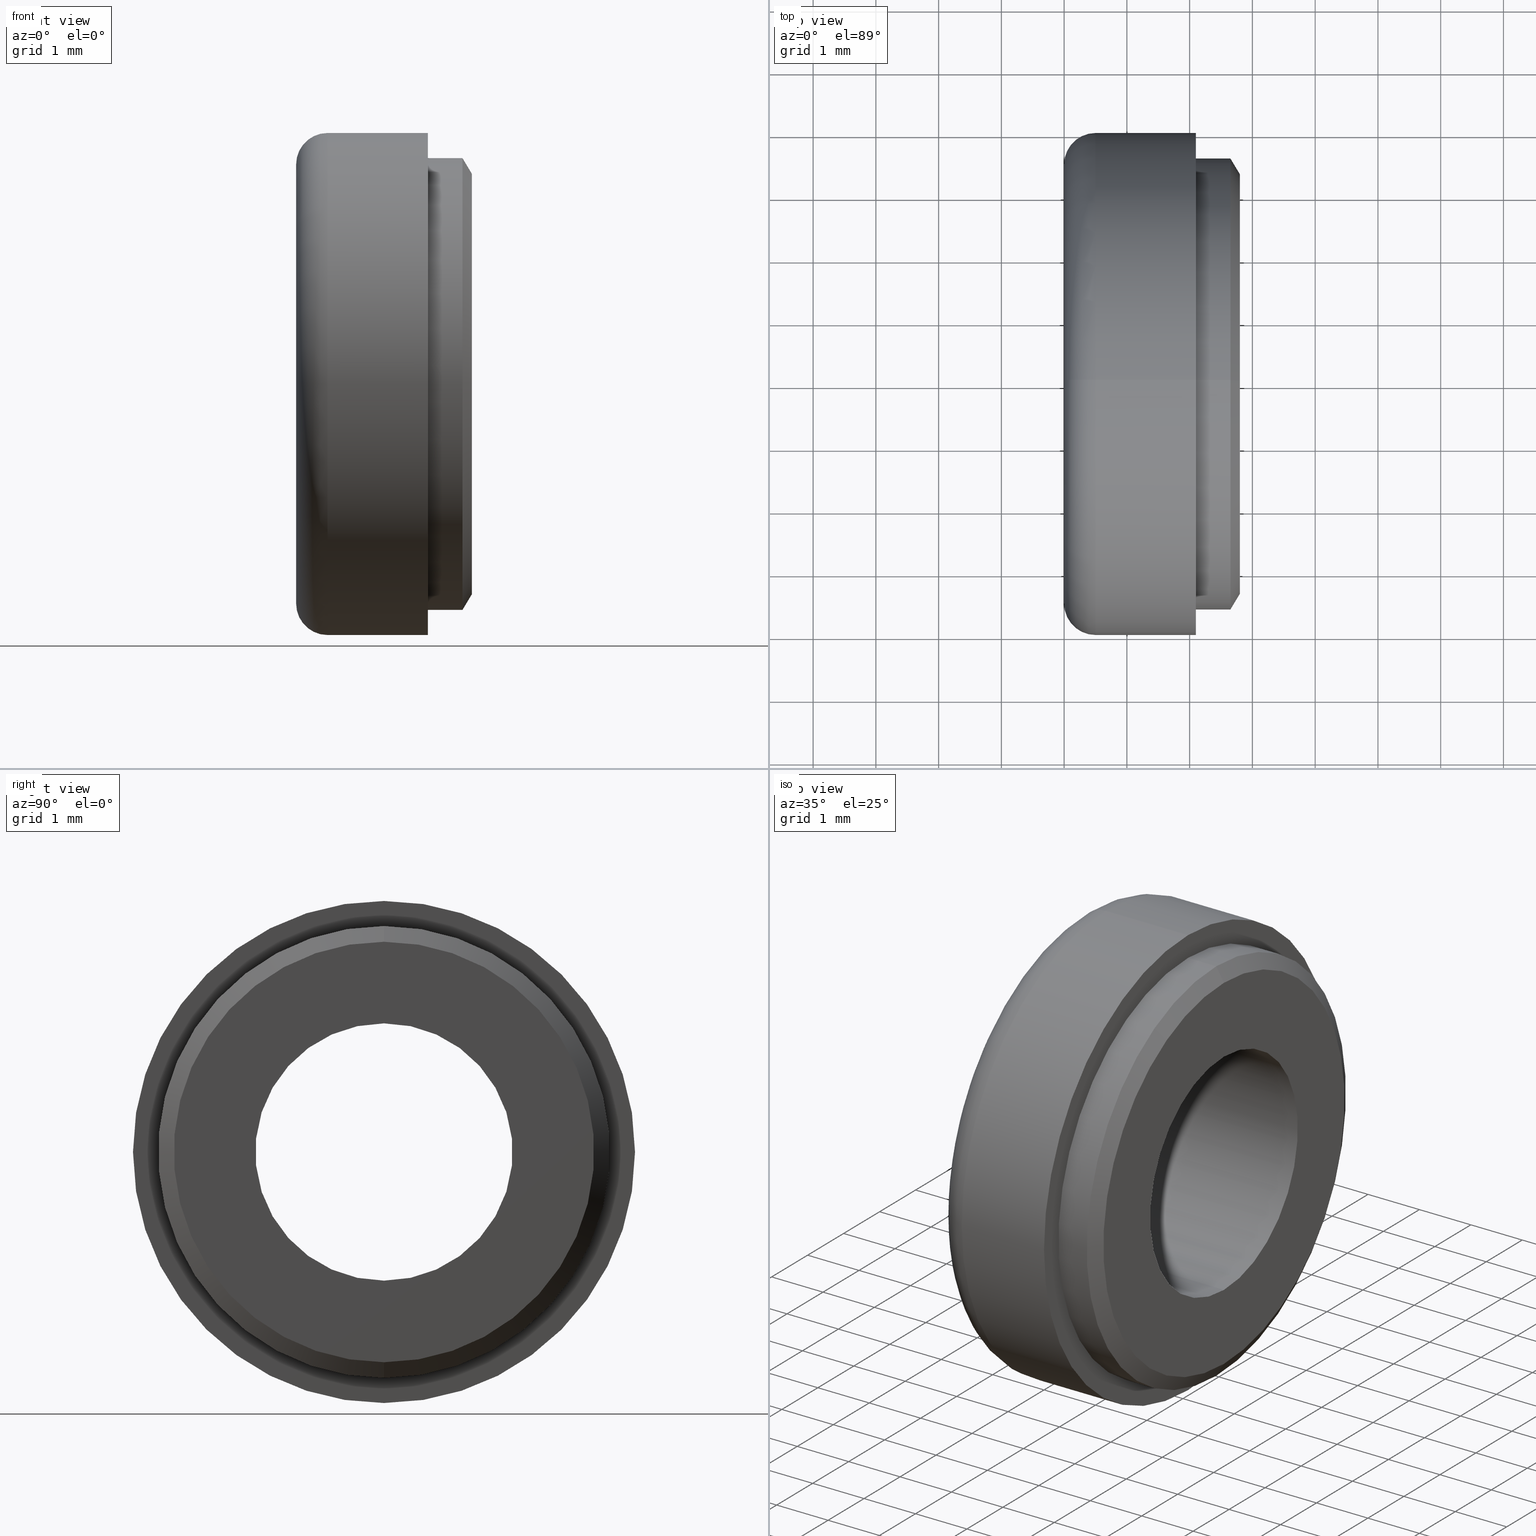
[diagram: canonical four-view strip — front | top / right | iso, engineering-drawing reading convention]
A machine part, canonical four-view strip (front | top / right | iso — engineering-drawing reading convention). The complete STEP part file that produces these views, byte-faithful:
ISO-10303-21;
HEADER;
FILE_DESCRIPTION (( 'STEP AP214' ),
    '1' );
FILE_NAME ('TL_421_M4.STEP',
    '2016-01-25T00:42:37',
    ( '' ),
    ( '' ),
    'SwSTEP 2.0',
    'SolidWorks 2015',
    '' );
FILE_SCHEMA (( 'AUTOMOTIVE_DESIGN' ));
ENDSEC;

DATA;
#1 = CARTESIAN_POINT ( 'NONE',  ( 2.100000000000000100, 0.0000000000000000000, 0.0000000000000000000 ) ) ;
#2 = COLOUR_RGB ( '',0.7921568627450980000, 0.8196078431372548800, 0.9333333333333333500 ) ;
#3 = ORIENTED_EDGE ( 'NONE', *, *, #383, .T. ) ;
#4 = SURFACE_SIDE_STYLE ('',( #642 ) ) ;
#5 = CARTESIAN_POINT ( 'NONE',  ( 2.100000000000000100, 0.0000000000000000000, 0.0000000000000000000 ) ) ;
#6 = AXIS2_PLACEMENT_3D ( 'NONE', #441, #499, #617 ) ;
#7 = CIRCLE ( 'NONE', #566, 3.500000000000000000 ) ;
#8 = EDGE_CURVE ( 'NONE', #686, #280, #706, .T. ) ;
#9 = ORIENTED_EDGE ( 'NONE', *, *, #549, .T. ) ;
#10 = CARTESIAN_POINT ( 'NONE',  ( 2.100000000000000100, 0.0000000000000000000, 4.000000000000000000 ) ) ;
#11 = EDGE_LOOP ( 'NONE', ( #551, #645 ) ) ;
#12 = DIRECTION ( 'NONE',  ( 0.0000000000000000000, 1.224646799147352500E-016, 1.000000000000000000 ) ) ;
#13 = CARTESIAN_POINT ( 'NONE',  ( 0.5000000000000000000, 0.0000000000000000000, 0.0000000000000000000 ) ) ;
#14 = SHAPE_REPRESENTATION ( 'TL_421_M4', ( #521, #375, #413 ), #447 ) ;
#15 = ORIENTED_EDGE ( 'NONE', *, *, #274, .T. ) ;
#16 = EDGE_LOOP ( 'NONE', ( #45, #146 ) ) ;
#17 = COLOUR_RGB ( '',0.7921568627450980000, 0.8196078431372548800, 0.9333333333333333500 ) ;
#18 = CIRCLE ( 'NONE', #465, 2.049999999999999400 ) ;
#19 = EDGE_LOOP ( 'NONE', ( #635, #443 ) ) ;
#20 = DIRECTION ( 'NONE',  ( 0.0000000000000000000, 0.0000000000000000000, 1.000000000000000000 ) ) ;
#21 = CIRCLE ( 'NONE', #273, 4.000000000000000000 ) ;
#22 = PRODUCT_RELATED_PRODUCT_CATEGORY ( 'part', '', ( #512 ) ) ;
#23 = CIRCLE ( 'NONE', #714, 0.5000000000000000000 ) ;
#24 = ADVANCED_FACE ( 'NONE', ( #297 ), #391, .F. ) ;
#25 = DIRECTION ( 'NONE',  ( -1.000000000000000000, 0.0000000000000000000, 0.0000000000000000000 ) ) ;
#26 = ORIENTED_EDGE ( 'NONE', *, *, #240, .F. ) ;
#27 = AXIS2_PLACEMENT_3D ( 'NONE', #258, #625, #358 ) ;
#28 = ADVANCED_FACE ( 'NONE', ( #29, #110 ), #560, .T. ) ;
#29 = FACE_BOUND ( 'NONE', #506, .T. ) ;
#30 = CIRCLE ( 'NONE', #367, 3.500000000000000000 ) ;
#31 = DIRECTION ( 'NONE',  ( 1.000000000000000000, 0.0000000000000000000, 0.0000000000000000000 ) ) ;
#32 = PRODUCT_CONTEXT ( 'NONE', #100, 'mechanical' ) ;
#33 = EDGE_CURVE ( 'NONE', #379, #279, #23, .T. ) ;
#34 = CARTESIAN_POINT ( 'NONE',  ( 2.299999999999996300, 0.0000000000000000000, 2.049999999999999400 ) ) ;
#35 = MECHANICAL_DESIGN_GEOMETRIC_PRESENTATION_REPRESENTATION (  '', ( #697 ), #81 ) ;
#36 = DIRECTION ( 'NONE',  ( 1.000000000000000000, 0.0000000000000000000, 0.0000000000000000000 ) ) ;
#37 = CIRCLE ( 'NONE', #322, 3.600000000000000100 ) ;
#38 = CARTESIAN_POINT ( 'NONE',  ( 2.100000000000000100, 0.0000000000000000000, 0.0000000000000000000 ) ) ;
#39 = CARTESIAN_POINT ( 'NONE',  ( 2.299999999999996300, 0.0000000000000000000, 0.0000000000000000000 ) ) ;
#40 = EDGE_LOOP ( 'NONE', ( #63, #121, #374, #545 ) ) ;
#41 =( NAMED_UNIT ( * ) PLANE_ANGLE_UNIT ( ) SI_UNIT ( $, .RADIAN. ) );
#42 = CYLINDRICAL_SURFACE ( 'NONE', #330, 2.049999999999999800 ) ;
#43 = VERTEX_POINT ( 'NONE', #144 ) ;
#44 = DIRECTION ( 'NONE',  ( 0.0000000000000000000, 0.0000000000000000000, 1.000000000000000000 ) ) ;
#45 = ORIENTED_EDGE ( 'NONE', *, *, #727, .F. ) ;
#46 = AXIS2_PLACEMENT_3D ( 'NONE', #633, #510, #732 ) ;
#47 = CARTESIAN_POINT ( 'NONE',  ( -88.98999999999999500, 0.0000000000000000000, 0.0000000000000000000 ) ) ;
#48 = VECTOR ( 'NONE', #188, 1000.000000000000000 ) ;
#49 = CARTESIAN_POINT ( 'NONE',  ( 2.149999999999999000, 0.0000000000000000000, 0.0000000000000000000 ) ) ;
#50 = FACE_BOUND ( 'NONE', #259, .T. ) ;
#51 = FACE_OUTER_BOUND ( 'NONE', #190, .T. ) ;
#52 = EDGE_CURVE ( 'NONE', #731, #349, #112, .T. ) ;
#53 = CIRCLE ( 'NONE', #705, 2.049999999999999800 ) ;
#54 = APPLICATION_CONTEXT ( 'automotive_design' ) ;
#55 = CONICAL_SURFACE ( 'NONE', #6, 3.350000000000000100, 1.030376826524319800 ) ;
#56 = FACE_BOUND ( 'NONE', #16, .T. ) ;
#57 = AXIS2_PLACEMENT_3D ( 'NONE', #1, #562, #498 ) ;
#58 = DIRECTION ( 'NONE',  ( -1.000000000000000000, -0.0000000000000000000, -0.0000000000000000000 ) ) ;
#59 = MECHANICAL_DESIGN_GEOMETRIC_PRESENTATION_REPRESENTATION (  '', ( #574 ), #514 ) ;
#60 = CARTESIAN_POINT ( 'NONE',  ( 0.0000000000000000000, 0.0000000000000000000, 0.0000000000000000000 ) ) ;
#61 = LINE ( 'NONE', #217, #206 ) ;
#62 = DIRECTION ( 'NONE',  ( 0.0000000000000000000, 0.0000000000000000000, -1.000000000000000000 ) ) ;
#63 = ORIENTED_EDGE ( 'NONE', *, *, #52, .F. ) ;
#64 = VERTEX_POINT ( 'NONE', #654 ) ;
#65 = PRODUCT_DEFINITION_FORMATION_WITH_SPECIFIED_SOURCE ( 'ANY', '', #454, .NOT_KNOWN. ) ;
#66 = ORIENTED_EDGE ( 'NONE', *, *, #260, .F. ) ;
#67 = DIRECTION ( 'NONE',  ( -1.000000000000000000, -0.0000000000000000000, -0.0000000000000000000 ) ) ;
#68 = CARTESIAN_POINT ( 'NONE',  ( 2.100000000000000100, 0.0000000000000000000, 0.0000000000000000000 ) ) ;
#69 = CIRCLE ( 'NONE', #277, 2.049999999999999800 ) ;
#70 = ORIENTED_EDGE ( 'NONE', *, *, #526, .T. ) ;
#71 = CARTESIAN_POINT ( 'NONE',  ( 2.100000000000000100, 0.0000000000000000000, 0.0000000000000000000 ) ) ;
#72 = EDGE_LOOP ( 'NONE', ( #86, #66, #713, #532 ) ) ;
#73 = VERTEX_POINT ( 'NONE', #238 ) ;
#74 = DIRECTION ( 'NONE',  ( -0.5144957554275202400, 1.050125966765370800E-016, -0.8574929257125478700 ) ) ;
#75 = ORIENTED_EDGE ( 'NONE', *, *, #519, .F. ) ;
#76 = ORIENTED_EDGE ( 'NONE', *, *, #78, .F. ) ;
#77 = DIRECTION ( 'NONE',  ( 0.0000000000000000000, 0.0000000000000000000, -1.000000000000000000 ) ) ;
#78 = EDGE_CURVE ( 'NONE', #311, #279, #134, .T. ) ;
#79 = FACE_OUTER_BOUND ( 'NONE', #99, .T. ) ;
#80 = DIRECTION ( 'NONE',  ( -1.000000000000000000, -0.0000000000000000000, -0.0000000000000000000 ) ) ;
#81 =( GEOMETRIC_REPRESENTATION_CONTEXT ( 3 ) GLOBAL_UNCERTAINTY_ASSIGNED_CONTEXT ( ( #568 ) ) GLOBAL_UNIT_ASSIGNED_CONTEXT ( ( #437, #234, #264 ) ) REPRESENTATION_CONTEXT ( 'NONE', 'WORKASPACE' ) );
#82 = VECTOR ( 'NONE', #397, 1000.000000000000000 ) ;
#83 = CARTESIAN_POINT ( 'NONE',  ( -88.98999999999999500, 0.0000000000000000000, 3.499999999999999600 ) ) ;
#84 = ADVANCED_FACE ( 'NONE', ( #51 ), #396, .T. ) ;
#85 = AXIS2_PLACEMENT_3D ( 'NONE', #347, #434, #629 ) ;
#86 = ORIENTED_EDGE ( 'NONE', *, *, #474, .F. ) ;
#87 = ORIENTED_EDGE ( 'NONE', *, *, #509, .F. ) ;
#88 = ADVANCED_FACE ( 'NONE', ( #390, #593 ), #90, .F. ) ;
#89 = CYLINDRICAL_SURFACE ( 'NONE', #350, 3.600000000000000100 ) ;
#90 = PLANE ( 'NONE',  #610 ) ;
#91 =( NAMED_UNIT ( * ) PLANE_ANGLE_UNIT ( ) SI_UNIT ( $, .RADIAN. ) );
#92 = EDGE_CURVE ( 'NONE', #64, #43, #310, .T. ) ;
#93 = ADVANCED_FACE ( 'NONE', ( #252 ), #324, .F. ) ;
#94 = EDGE_LOOP ( 'NONE', ( #594, #542 ) ) ;
#95 = AXIS2_PLACEMENT_3D ( 'NONE', #664, #712, #386 ) ;
#96 = APPLICATION_PROTOCOL_DEFINITION ( 'draft international standard', 'automotive_design', 1998, #611 ) ;
#97 = ORIENTED_EDGE ( 'NONE', *, *, #33, .F. ) ;
#98 = DIRECTION ( 'NONE',  ( 0.0000000000000000000, 0.0000000000000000000, -1.000000000000000000 ) ) ;
#99 = EDGE_LOOP ( 'NONE', ( #143, #359, #131, #170 ) ) ;
#100 = APPLICATION_CONTEXT ( 'automotive_design' ) ;
#101 = FACE_OUTER_BOUND ( 'NONE', #483, .T. ) ;
#102 = CARTESIAN_POINT ( 'NONE',  ( 0.0000000000000000000, 0.0000000000000000000, 0.0000000000000000000 ) ) ;
#103 = CARTESIAN_POINT ( 'NONE',  ( 2.299999999999998000, 2.049999999999999400, 0.0000000000000000000 ) ) ;
#104 = CARTESIAN_POINT ( 'NONE',  ( 2.299999999999996300, 0.0000000000000000000, 0.0000000000000000000 ) ) ;
#105 = PRODUCT_RELATED_PRODUCT_CATEGORY ( 'part', '', ( #454 ) ) ;
#106 = CIRCLE ( 'NONE', #141, 3.499999999999999600 ) ;
#107 = SURFACE_SIDE_STYLE ('',( #587 ) ) ;
#108 = FACE_OUTER_BOUND ( 'NONE', #670, .T. ) ;
#109 = ORIENTED_EDGE ( 'NONE', *, *, #194, .F. ) ;
#110 = FACE_OUTER_BOUND ( 'NONE', #94, .T. ) ;
#111 = CIRCLE ( 'NONE', #607, 2.100000000000000100 ) ;
#112 = LINE ( 'NONE', #647, #380 ) ;
#113 = FACE_OUTER_BOUND ( 'NONE', #569, .T. ) ;
#114 = DIRECTION ( 'NONE',  ( -1.000000000000000000, -0.0000000000000000000, -0.0000000000000000000 ) ) ;
#115 = PRODUCT_DEFINITION_CONTEXT ( 'detailed design', #163, 'design' ) ;
#116 = AXIS2_PLACEMENT_3D ( 'NONE', #49, #58, #388 ) ;
#117 = DIRECTION ( 'NONE',  ( -1.000000000000000000, -0.0000000000000000000, -0.0000000000000000000 ) ) ;
#118 = CARTESIAN_POINT ( 'NONE',  ( 0.5000000000000000000, 0.0000000000000000000, 3.500000000000000000 ) ) ;
#119 = SURFACE_STYLE_FILL_AREA ( #189 ) ;
#120 = FILL_AREA_STYLE_COLOUR ( '', #17 ) ;
#121 = ORIENTED_EDGE ( 'NONE', *, *, #169, .T. ) ;
#122 = EDGE_CURVE ( 'NONE', #470, #619, #303, .T. ) ;
#123 = DIRECTION ( 'NONE',  ( -1.000000000000000000, -0.0000000000000000000, -0.0000000000000000000 ) ) ;
#124 = CARTESIAN_POINT ( 'NONE',  ( 2.149999999999999000, 4.408728476930471200E-016, -3.600000000000000100 ) ) ;
#125 =( GEOMETRIC_REPRESENTATION_CONTEXT ( 3 ) GLOBAL_UNCERTAINTY_ASSIGNED_CONTEXT ( ( #490 ) ) GLOBAL_UNIT_ASSIGNED_CONTEXT ( ( #317, #719, #722 ) ) REPRESENTATION_CONTEXT ( 'NONE', 'WORKASPACE' ) );
#126 = DIRECTION ( 'NONE',  ( 0.0000000000000000000, 0.0000000000000000000, 1.000000000000000000 ) ) ;
#127 = ORIENTED_EDGE ( 'NONE', *, *, #309, .F. ) ;
#128 = CARTESIAN_POINT ( 'NONE',  ( 0.0000000000000000000, 0.0000000000000000000, 0.0000000000000000000 ) ) ;
#129 = DIRECTION ( 'NONE',  ( 0.0000000000000000000, 0.0000000000000000000, -1.000000000000000000 ) ) ;
#130 = TOROIDAL_SURFACE ( 'NONE', #95, 3.500000000000000000, 0.5000000000000000000 ) ;
#131 = ORIENTED_EDGE ( 'NONE', *, *, #348, .F. ) ;
#132 = DIRECTION ( 'NONE',  ( 1.000000000000000000, 0.0000000000000000000, 0.0000000000000000000 ) ) ;
#133 = CIRCLE ( 'NONE', #272, 3.500000000000000000 ) ;
#134 = LINE ( 'NONE', #314, #399 ) ;
#135 = DIRECTION ( 'NONE',  ( -1.000000000000000000, -0.0000000000000000000, -0.0000000000000000000 ) ) ;
#136 = CARTESIAN_POINT ( 'NONE',  ( 2.100000000000000100, 4.286263797015736600E-016, -3.500000000000000000 ) ) ;
#137 = CARTESIAN_POINT ( 'NONE',  ( 2.100000000000000100, 4.286263797015736600E-016, -3.500000000000000000 ) ) ;
#138 = EDGE_CURVE ( 'NONE', #286, #349, #409, .T. ) ;
#139 = DIRECTION ( 'NONE',  ( -1.000000000000000000, -0.0000000000000000000, -0.0000000000000000000 ) ) ;
#140 = CARTESIAN_POINT ( 'NONE',  ( 1.600000000000004100, 4.408728476930471200E-016, -3.600000000000000100 ) ) ;
#141 = AXIS2_PLACEMENT_3D ( 'NONE', #439, #276, #319 ) ;
#142 = EDGE_LOOP ( 'NONE', ( #695, #145 ) ) ;
#143 = ORIENTED_EDGE ( 'NONE', *, *, #727, .T. ) ;
#144 = CARTESIAN_POINT ( 'NONE',  ( 1.600000000000004100, 0.0000000000000000000, 3.499999999999999100 ) ) ;
#145 = ORIENTED_EDGE ( 'NONE', *, *, #444, .T. ) ;
#146 = ORIENTED_EDGE ( 'NONE', *, *, #8, .F. ) ;
#147 = CYLINDRICAL_SURFACE ( 'NONE', #355, 2.100000000000000100 ) ;
#148 = PRODUCT_DEFINITION_FORMATION_WITH_SPECIFIED_SOURCE ( 'ANY', '', #405, .NOT_KNOWN. ) ;
#149 = CARTESIAN_POINT ( 'NONE',  ( 1.600000000000004100, 0.0000000000000000000, 0.0000000000000000000 ) ) ;
#150 = CARTESIAN_POINT ( 'NONE',  ( -88.98999999999999500, 0.0000000000000000000, 0.0000000000000000000 ) ) ;
#151 = ORIENTED_EDGE ( 'NONE', *, *, #260, .T. ) ;
#152 = VECTOR ( 'NONE', #123, 1000.000000000000000 ) ;
#153 = ADVANCED_FACE ( 'NONE', ( #56, #538 ), #356, .T. ) ;
#154 = ADVANCED_FACE ( 'NONE', ( #415 ), #237, .T. ) ;
#155 = ORIENTED_EDGE ( 'NONE', *, *, #588, .T. ) ;
#156 = VERTEX_POINT ( 'NONE', #34 ) ;
#157 = LINE ( 'NONE', #612, #152 ) ;
#158 = EDGE_CURVE ( 'NONE', #381, #186, #346, .T. ) ;
#159 = STYLED_ITEM ( 'NONE', ( #446 ), #370 ) ;
#160 = DIRECTION ( 'NONE',  ( 0.0000000000000000000, 1.000000000000000000, -1.224646799147353200E-016 ) ) ;
#161 = DIRECTION ( 'NONE',  ( 0.0000000000000000000, 0.0000000000000000000, 1.000000000000000000 ) ) ;
#162 = FACE_OUTER_BOUND ( 'NONE', #698, .T. ) ;
#163 = APPLICATION_CONTEXT ( 'automotive_design' ) ;
#164 = VERTEX_POINT ( 'NONE', #469 ) ;
#165 = CIRCLE ( 'NONE', #680, 3.499999999999999600 ) ;
#166 = AXIS2_PLACEMENT_3D ( 'NONE', #150, #548, #679 ) ;
#167 = DIRECTION ( 'NONE',  ( -1.000000000000000000, 0.0000000000000000000, 0.0000000000000000000 ) ) ;
#168 = SHAPE_REPRESENTATION_RELATIONSHIP ( 'NONE' , 'NONE' ,  #630, #472 ) ;
#169 = EDGE_CURVE ( 'NONE', #731, #683, #248, .T. ) ;
#170 = ORIENTED_EDGE ( 'NONE', *, *, #540, .F. ) ;
#171 = DIRECTION ( 'NONE',  ( 1.000000000000000000, 0.0000000000000000000, 0.0000000000000000000 ) ) ;
#172 = AXIS2_PLACEMENT_3D ( 'NONE', #47, #262, #334 ) ;
#173 = AXIS2_PLACEMENT_3D ( 'NONE', #351, #67, #546 ) ;
#174 = FACE_OUTER_BOUND ( 'NONE', #19, .T. ) ;
#175 = DIRECTION ( 'NONE',  ( 0.0000000000000000000, 0.0000000000000000000, 1.000000000000000000 ) ) ;
#176 = DIRECTION ( 'NONE',  ( -0.5144957554275202400, 0.0000000000000000000, 0.8574929257125478700 ) ) ;
#177 = AXIS2_PLACEMENT_3D ( 'NONE', #403, #547, #62 ) ;
#178 = FACE_OUTER_BOUND ( 'NONE', #457, .T. ) ;
#179 = CARTESIAN_POINT ( 'NONE',  ( -88.98999999999999500, 0.0000000000000000000, 3.600000000000000100 ) ) ;
#180 = DIRECTION ( 'NONE',  ( -1.000000000000000000, -0.0000000000000000000, -0.0000000000000000000 ) ) ;
#181 = ORIENTED_EDGE ( 'NONE', *, *, #122, .T. ) ;
#182 = DIRECTION ( 'NONE',  ( -1.000000000000000000, -0.0000000000000000000, -0.0000000000000000000 ) ) ;
#183 = PRODUCT_RELATED_PRODUCT_CATEGORY ( 'part', '', ( #405 ) ) ;
#184 = MANIFOLD_SOLID_BREP ( '��� - �����o��1', #496 ) ;
#185 = CARTESIAN_POINT ( 'NONE',  ( 2.299999999999996300, 4.255647627037052200E-016, -3.350000000000000100 ) ) ;
#186 = VERTEX_POINT ( 'NONE', #553 ) ;
#187 = PRODUCT_DEFINITION_SHAPE ( 'NONE', 'NONE',  #733 ) ;
#188 = DIRECTION ( 'NONE',  ( -1.000000000000000000, -0.0000000000000000000, -0.0000000000000000000 ) ) ;
#189 = FILL_AREA_STYLE ('',( #377 ) ) ;
#190 = EDGE_LOOP ( 'NONE', ( #586, #213, #336, #76 ) ) ;
#191 = SURFACE_STYLE_USAGE ( .BOTH. , #4 ) ;
#192 = DIRECTION ( 'NONE',  ( 0.0000000000000000000, 0.0000000000000000000, 1.000000000000000000 ) ) ;
#193 = ORIENTED_EDGE ( 'NONE', *, *, #458, .T. ) ;
#194 = EDGE_CURVE ( 'NONE', #500, #379, #687, .T. ) ;
#195 = PRESENTATION_LAYER_ASSIGNMENT (  '', '', ( #159 ) ) ;
#196 = VECTOR ( 'NONE', #450, 1000.000000000000000 ) ;
#197 = SURFACE_STYLE_FILL_AREA ( #337 ) ;
#198 = ORIENTED_EDGE ( 'NONE', *, *, #224, .F. ) ;
#199 = EDGE_LOOP ( 'NONE', ( #155, #3 ) ) ;
#200 = AXIS2_PLACEMENT_3D ( 'NONE', #306, #699, #729 ) ;
#201 = APPLICATION_PROTOCOL_DEFINITION ( 'draft international standard', 'automotive_design', 1998, #660 ) ;
#202 = ADVANCED_FACE ( 'NONE', ( #101 ), #582, .T. ) ;
#203 = EDGE_CURVE ( 'NONE', #470, #731, #270, .T. ) ;
#204 = AXIS2_PLACEMENT_3D ( 'NONE', #104, #615, #44 ) ;
#205 = ORIENTED_EDGE ( 'NONE', *, *, #8, .T. ) ;
#206 = VECTOR ( 'NONE', #167, 1000.000000000000000 ) ;
#207 = CARTESIAN_POINT ( 'NONE',  ( 2.100000000000000100, 0.0000000000000000000, 0.0000000000000000000 ) ) ;
#208 = LINE ( 'NONE', #385, #82 ) ;
#209 = EDGE_LOOP ( 'NONE', ( #580, #364, #638, #247 ) ) ;
#210 = DIRECTION ( 'NONE',  ( -1.000000000000000000, -0.0000000000000000000, -0.0000000000000000000 ) ) ;
#211 = ORIENTED_EDGE ( 'NONE', *, *, #577, .T. ) ;
#212 = CARTESIAN_POINT ( 'NONE',  ( 0.5000000000000000000, 4.286263797015736600E-016, 3.500000000000000000 ) ) ;
#213 = ORIENTED_EDGE ( 'NONE', *, *, #309, .T. ) ;
#214 = CARTESIAN_POINT ( 'NONE',  ( 0.5000000000000000000, 2.571758278209442000E-016, -2.100000000000000100 ) ) ;
#215 = ITEM_DEFINED_TRANSFORMATION ( 'NONE', 'NONE', #375,  #651 ) ;
#216 = CONICAL_SURFACE ( 'NONE', #242, 3.350000000000000100, 1.030376826524319800 ) ;
#217 = CARTESIAN_POINT ( 'NONE',  ( 2.100000000000000100, 0.0000000000000000000, 2.100000000000000100 ) ) ;
#218 = UNCERTAINTY_MEASURE_WITH_UNIT (LENGTH_MEASURE( 1.000000000000000100E-005 ), #235, 'distance_accuracy_value', 'NONE');
#219 =( LENGTH_UNIT ( ) NAMED_UNIT ( * ) SI_UNIT ( .MILLI., .METRE. ) );
#220 = FACE_BOUND ( 'NONE', #11, .T. ) ;
#221 = CARTESIAN_POINT ( 'NONE',  ( 2.100000000000000100, 0.0000000000000000000, 3.500000000000000000 ) ) ;
#222 = EDGE_LOOP ( 'NONE', ( #425, #15, #198, #87 ) ) ;
#223 = LINE ( 'NONE', #662, #352 ) ;
#224 = EDGE_CURVE ( 'NONE', #164, #73, #165, .T. ) ;
#225 = CARTESIAN_POINT ( 'NONE',  ( 1.084202172485504400E-016, 3.499999999999999600, 0.0000000000000000000 ) ) ;
#226 = ORIENTED_EDGE ( 'NONE', *, *, #410, .F. ) ;
#227 = ORIENTED_EDGE ( 'NONE', *, *, #331, .F. ) ;
#228 = MECHANICAL_DESIGN_GEOMETRIC_PRESENTATION_REPRESENTATION (  '', ( #159 ), #263 ) ;
#229 = CARTESIAN_POINT ( 'NONE',  ( 0.5000000000000000000, 0.0000000000000000000, 2.100000000000000100 ) ) ;
#230 = DIRECTION ( 'NONE',  ( -1.000000000000000000, -0.0000000000000000000, -0.0000000000000000000 ) ) ;
#231 = DIRECTION ( 'NONE',  ( -1.000000000000000000, 0.0000000000000000000, -0.0000000000000000000 ) ) ;
#232 = CARTESIAN_POINT ( 'NONE',  ( 0.0000000000000000000, 0.0000000000000000000, 0.0000000000000000000 ) ) ;
#233 = COLOUR_RGB ( '',0.7921568627450980000, 0.8196078431372548800, 0.9333333333333333500 ) ;
#234 =( NAMED_UNIT ( * ) PLANE_ANGLE_UNIT ( ) SI_UNIT ( $, .RADIAN. ) );
#235 =( LENGTH_UNIT ( ) NAMED_UNIT ( * ) SI_UNIT ( .MILLI., .METRE. ) );
#236 = DIRECTION ( 'NONE',  ( -1.000000000000000000, -0.0000000000000000000, -0.0000000000000000000 ) ) ;
#237 = CYLINDRICAL_SURFACE ( 'NONE', #166, 3.600000000000000100 ) ;
#238 = CARTESIAN_POINT ( 'NONE',  ( 0.0000000000000000000, 4.286263797015736100E-016, -3.499999999999999600 ) ) ;
#239 = UNCERTAINTY_MEASURE_WITH_UNIT (LENGTH_MEASURE( 1.000000000000000100E-005 ), #529, 'distance_accuracy_value', 'NONE');
#240 = EDGE_CURVE ( 'NONE', #43, #64, #464, .T. ) ;
#241 = CARTESIAN_POINT ( 'NONE',  ( 0.0000000000000000000, 0.0000000000000000000, 0.0000000000000000000 ) ) ;
#242 = AXIS2_PLACEMENT_3D ( 'NONE', #689, #230, #685 ) ;
#243 = DIRECTION ( 'NONE',  ( 0.0000000000000000000, 0.0000000000000000000, 1.000000000000000000 ) ) ;
#244 = DIRECTION ( 'NONE',  ( 0.0000000000000000000, 0.0000000000000000000, -1.000000000000000000 ) ) ;
#245 = CARTESIAN_POINT ( 'NONE',  ( 1.600000000000004100, 0.0000000000000000000, 3.600000000000000100 ) ) ;
#246 = ORIENTED_EDGE ( 'NONE', *, *, #298, .T. ) ;
#247 = ORIENTED_EDGE ( 'NONE', *, *, #298, .F. ) ;
#248 = CIRCLE ( 'NONE', #116, 3.600000000000000100 ) ;
#249 = FACE_OUTER_BOUND ( 'NONE', #648, .T. ) ;
#250 = VERTEX_POINT ( 'NONE', #459 ) ;
#251 = ORIENTED_EDGE ( 'NONE', *, *, #78, .T. ) ;
#252 = FACE_OUTER_BOUND ( 'NONE', #690, .T. ) ;
#253 = CLOSED_SHELL ( 'NONE', ( #649, #704, #701, #93, #362, #357, #709, #254, #154, #421, #202 ) ) ;
#254 = ADVANCED_FACE ( 'NONE', ( #672 ), #55, .T. ) ;
#255 = ADVANCED_FACE ( 'NONE', ( #113 ), #261, .T. ) ;
#256 = COLOUR_RGB ( '',0.7921568627450980000, 0.8196078431372548800, 0.9333333333333333500 ) ;
#257 = DIRECTION ( 'NONE',  ( 1.000000000000000000, 0.0000000000000000000, 0.0000000000000000000 ) ) ;
#258 = CARTESIAN_POINT ( 'NONE',  ( -88.98999999999999500, 0.0000000000000000000, 0.0000000000000000000 ) ) ;
#259 = EDGE_LOOP ( 'NONE', ( #26, #487 ) ) ;
#260 = EDGE_CURVE ( 'NONE', #295, #609, #653, .T. ) ;
#261 = CYLINDRICAL_SURFACE ( 'NONE', #420, 4.000000000000000000 ) ;
#262 = DIRECTION ( 'NONE',  ( -1.000000000000000000, -0.0000000000000000000, -0.0000000000000000000 ) ) ;
#263 =( GEOMETRIC_REPRESENTATION_CONTEXT ( 3 ) GLOBAL_UNCERTAINTY_ASSIGNED_CONTEXT ( ( #239 ) ) GLOBAL_UNIT_ASSIGNED_CONTEXT ( ( #529, #41, #475 ) ) REPRESENTATION_CONTEXT ( 'NONE', 'WORKASPACE' ) );
#264 =( NAMED_UNIT ( * ) SI_UNIT ( $, .STERADIAN. ) SOLID_ANGLE_UNIT ( ) );
#265 = VECTOR ( 'NONE', #236, 1000.000000000000000 ) ;
#266 = ORIENTED_EDGE ( 'NONE', *, *, #458, .F. ) ;
#267 = APPLICATION_PROTOCOL_DEFINITION ( 'draft international standard', 'automotive_design', 1998, #163 ) ;
#268 = PRODUCT_DEFINITION_SHAPE ( 'NONE', 'NONE',  #676 ) ;
#269 = EDGE_LOOP ( 'NONE', ( #471, #456 ) ) ;
#270 = LINE ( 'NONE', #544, #382 ) ;
#271 = CARTESIAN_POINT ( 'NONE',  ( 0.0000000000000000000, 0.0000000000000000000, 0.0000000000000000000 ) ) ;
#272 = AXIS2_PLACEMENT_3D ( 'NONE', #691, #407, #445 ) ;
#273 = AXIS2_PLACEMENT_3D ( 'NONE', #71, #291, #693 ) ;
#274 = EDGE_CURVE ( 'NONE', #64, #73, #157, .T. ) ;
#275 = DIRECTION ( 'NONE',  ( 0.0000000000000000000, -1.000000000000000000, 0.0000000000000000000 ) ) ;
#276 = DIRECTION ( 'NONE',  ( -1.000000000000000000, -0.0000000000000000000, -0.0000000000000000000 ) ) ;
#277 = AXIS2_PLACEMENT_3D ( 'NONE', #511, #595, #675 ) ;
#278 = DIRECTION ( 'NONE',  ( -1.000000000000000000, -0.0000000000000000000, -0.0000000000000000000 ) ) ;
#279 = VERTEX_POINT ( 'NONE', #480 ) ;
#280 = VERTEX_POINT ( 'NONE', #221 ) ;
#281 = DIRECTION ( 'NONE',  ( 1.000000000000000000, 0.0000000000000000000, 0.0000000000000000000 ) ) ;
#282 = DIRECTION ( 'NONE',  ( 0.0000000000000000000, 0.0000000000000000000, -1.000000000000000000 ) ) ;
#283 = CARTESIAN_POINT ( 'NONE',  ( 2.299999999999996300, 0.0000000000000000000, 3.350000000000000100 ) ) ;
#284 = CIRCLE ( 'NONE', #177, 4.000000000000000000 ) ;
#285 = DIRECTION ( 'NONE',  ( 1.000000000000000000, 0.0000000000000000000, 0.0000000000000000000 ) ) ;
#286 = VERTEX_POINT ( 'NONE', #245 ) ;
#287 = ORIENTED_EDGE ( 'NONE', *, *, #549, .F. ) ;
#288 = ORIENTED_EDGE ( 'NONE', *, *, #158, .F. ) ;
#289 =( NAMED_UNIT ( * ) SI_UNIT ( $, .STERADIAN. ) SOLID_ANGLE_UNIT ( ) );
#290 = CARTESIAN_POINT ( 'NONE',  ( 0.0000000000000000000, 0.0000000000000000000, 0.0000000000000000000 ) ) ;
#291 = DIRECTION ( 'NONE',  ( 1.000000000000000000, 0.0000000000000000000, 0.0000000000000000000 ) ) ;
#292 = DIRECTION ( 'NONE',  ( 0.0000000000000000000, 0.0000000000000000000, 1.000000000000000000 ) ) ;
#293 = CARTESIAN_POINT ( 'NONE',  ( 1.600000000000000300, 3.600000000000000100, 0.0000000000000000000 ) ) ;
#294 = PRODUCT_DEFINITION_SHAPE ( 'NONE', 'NONE',  #734 ) ;
#295 = VERTEX_POINT ( 'NONE', #229 ) ;
#296 = PRESENTATION_LAYER_ASSIGNMENT (  '', '', ( #574 ) ) ;
#297 = FACE_OUTER_BOUND ( 'NONE', #72, .T. ) ;
#298 = EDGE_CURVE ( 'NONE', #619, #683, #530, .T. ) ;
#299 = FACE_OUTER_BOUND ( 'NONE', #627, .T. ) ;
#300 = CARTESIAN_POINT ( 'NONE',  ( 0.5000000000000000000, 0.0000000000000000000, 0.0000000000000000000 ) ) ;
#301 = CIRCLE ( 'NONE', #501, 3.600000000000000100 ) ;
#302 = DIRECTION ( 'NONE',  ( 1.000000000000000000, 0.0000000000000000000, 0.0000000000000000000 ) ) ;
#303 = CIRCLE ( 'NONE', #200, 3.350000000000000100 ) ;
#304 = ADVANCED_FACE ( 'NONE', ( #108 ), #663, .T. ) ;
#305 = PRESENTATION_STYLE_ASSIGNMENT (( #438 ) ) ;
#306 = CARTESIAN_POINT ( 'NONE',  ( 2.299999999999996300, 0.0000000000000000000, 0.0000000000000000000 ) ) ;
#307 = EDGE_LOOP ( 'NONE', ( #665, #181, #246, #308 ) ) ;
#308 = ORIENTED_EDGE ( 'NONE', *, *, #169, .F. ) ;
#309 = EDGE_CURVE ( 'NONE', #626, #418, #208, .T. ) ;
#310 = CIRCLE ( 'NONE', #419, 3.499999999999999100 ) ;
#311 = VERTEX_POINT ( 'NONE', #10 ) ;
#312 = CARTESIAN_POINT ( 'NONE',  ( 0.0000000000000000000, 0.0000000000000000000, 0.0000000000000000000 ) ) ;
#313 = VECTOR ( 'NONE', #278, 1000.000000000000000 ) ;
#314 = CARTESIAN_POINT ( 'NONE',  ( 2.100000000000000100, 0.0000000000000000000, 4.000000000000000000 ) ) ;
#315 =( NAMED_UNIT ( * ) SI_UNIT ( $, .STERADIAN. ) SOLID_ANGLE_UNIT ( ) );
#316 = DIRECTION ( 'NONE',  ( 0.0000000000000000000, 0.0000000000000000000, 1.000000000000000000 ) ) ;
#317 =( LENGTH_UNIT ( ) NAMED_UNIT ( * ) SI_UNIT ( .MILLI., .METRE. ) );
#318 = VERTEX_POINT ( 'NONE', #515 ) ;
#319 = DIRECTION ( 'NONE',  ( 0.0000000000000000000, 0.0000000000000000000, 1.000000000000000000 ) ) ;
#320 = APPLICATION_PROTOCOL_DEFINITION ( 'draft international standard', 'automotive_design', 1998, #54 ) ;
#321 = ORIENTED_EDGE ( 'NONE', *, *, #33, .T. ) ;
#322 = AXIS2_PLACEMENT_3D ( 'NONE', #655, #182, #329 ) ;
#323 = SURFACE_SIDE_STYLE ('',( #119 ) ) ;
#324 = CYLINDRICAL_SURFACE ( 'NONE', #27, 2.049999999999999800 ) ;
#325 = CARTESIAN_POINT ( 'NONE',  ( 0.5000000000000000000, 0.0000000000000000000, -3.500000000000000000 ) ) ;
#326 = ORIENTED_EDGE ( 'NONE', *, *, #423, .T. ) ;
#327 =( NAMED_UNIT ( * ) SI_UNIT ( $, .STERADIAN. ) SOLID_ANGLE_UNIT ( ) );
#328 = DIRECTION ( 'NONE',  ( 1.000000000000000000, 0.0000000000000000000, 0.0000000000000000000 ) ) ;
#329 = DIRECTION ( 'NONE',  ( 0.0000000000000000000, 0.0000000000000000000, 1.000000000000000000 ) ) ;
#330 = AXIS2_PLACEMENT_3D ( 'NONE', #724, #117, #688 ) ;
#331 = EDGE_CURVE ( 'NONE', #609, #295, #111, .T. ) ;
#332 = DIRECTION ( 'NONE',  ( 0.0000000000000000000, 0.0000000000000000000, -1.000000000000000000 ) ) ;
#333 = CYLINDRICAL_SURFACE ( 'NONE', #398, 3.500000000000000000 ) ;
#334 = DIRECTION ( 'NONE',  ( 0.0000000000000000000, 0.0000000000000000000, 1.000000000000000000 ) ) ;
#335 = AXIS2_PLACEMENT_3D ( 'NONE', #271, #718, #281 ) ;
#336 = ORIENTED_EDGE ( 'NONE', *, *, #601, .T. ) ;
#337 = FILL_AREA_STYLE ('',( #440 ) ) ;
#338 = ORIENTED_EDGE ( 'NONE', *, *, #274, .F. ) ;
#339 = PLANE ( 'NONE',  #431 ) ;
#340 = EDGE_LOOP ( 'NONE', ( #442, #700, #193, #427 ) ) ;
#341 = CARTESIAN_POINT ( 'NONE',  ( 0.5000000000000000000, 0.0000000000000000000, 0.0000000000000000000 ) ) ;
#342 = DIRECTION ( 'NONE',  ( -1.000000000000000000, -0.0000000000000000000, -0.0000000000000000000 ) ) ;
#343 = ITEM_DEFINED_TRANSFORMATION ( 'NONE', 'NONE', #413,  #651 ) ;
#344 = DIRECTION ( 'NONE',  ( 0.0000000000000000000, 0.0000000000000000000, -1.000000000000000000 ) ) ;
#345 = SURFACE_STYLE_USAGE ( .BOTH. , #323 ) ;
#346 = CIRCLE ( 'NONE', #531, 2.100000000000000100 ) ;
#347 = CARTESIAN_POINT ( 'NONE',  ( 1.600000000000004100, 0.0000000000000000000, 0.0000000000000000000 ) ) ;
#348 = EDGE_CURVE ( 'NONE', #584, #250, #133, .T. ) ;
#349 = VERTEX_POINT ( 'NONE', #140 ) ;
#350 = AXIS2_PLACEMENT_3D ( 'NONE', #725, #552, #433 ) ;
#351 = CARTESIAN_POINT ( 'NONE',  ( 2.299999999999996300, 0.0000000000000000000, 0.0000000000000000000 ) ) ;
#352 = VECTOR ( 'NONE', #114, 1000.000000000000000 ) ;
#353 = CARTESIAN_POINT ( 'NONE',  ( 2.100000000000000100, 0.0000000000000000000, 0.0000000000000000000 ) ) ;
#354 = AXIS2_PLACEMENT_3D ( 'NONE', #341, #302, #637 ) ;
#355 = AXIS2_PLACEMENT_3D ( 'NONE', #5, #715, #292 ) ;
#356 = PLANE ( 'NONE',  #543 ) ;
#357 = ADVANCED_FACE ( 'NONE', ( #557 ), #42, .F. ) ;
#358 = DIRECTION ( 'NONE',  ( 0.0000000000000000000, 0.0000000000000000000, 1.000000000000000000 ) ) ;
#359 = ORIENTED_EDGE ( 'NONE', *, *, #661, .T. ) ;
#360 = SHAPE_DEFINITION_REPRESENTATION ( #600, #630 ) ;
#361 = FACE_OUTER_BOUND ( 'NONE', #564, .T. ) ;
#362 = ADVANCED_FACE ( 'NONE', ( #220, #174 ), #339, .F. ) ;
#363 = APPLICATION_PROTOCOL_DEFINITION ( 'draft international standard', 'automotive_design', 1998, #384 ) ;
#364 = ORIENTED_EDGE ( 'NONE', *, *, #203, .T. ) ;
#365 = DIRECTION ( 'NONE',  ( 0.0000000000000000000, 0.0000000000000000000, 1.000000000000000000 ) ) ;
#366 = VERTEX_POINT ( 'NONE', #558 ) ;
#367 = AXIS2_PLACEMENT_3D ( 'NONE', #13, #605, #332 ) ;
#368 = PRODUCT_CONTEXT ( 'NONE', #660, 'mechanical' ) ;
#369 = CIRCLE ( 'NONE', #677, 0.5000000000000000000 ) ;
#370 = ADVANCED_BREP_SHAPE_REPRESENTATION ( '', ( #723, #651 ), #125 ) ;
#371 =( LENGTH_UNIT ( ) NAMED_UNIT ( * ) SI_UNIT ( .MILLI., .METRE. ) );
#372 = EDGE_CURVE ( 'NONE', #318, #536, #53, .T. ) ;
#373 = FILL_AREA_STYLE ('',( #120 ) ) ;
#374 = ORIENTED_EDGE ( 'NONE', *, *, #634, .T. ) ;
#375 = AXIS2_PLACEMENT_3D ( 'NONE', #579, #641, #257 ) ;
#376 = VECTOR ( 'NONE', #176, 1000.000000000000100 ) ;
#377 = FILL_AREA_STYLE_COLOUR ( '', #256 ) ;
#378 = CIRCLE ( 'NONE', #204, 3.350000000000000100 ) ;
#379 = VERTEX_POINT ( 'NONE', #555 ) ;
#380 = VECTOR ( 'NONE', #139, 1000.000000000000000 ) ;
#381 = VERTEX_POINT ( 'NONE', #539 ) ;
#382 = VECTOR ( 'NONE', #74, 1000.000000000000100 ) ;
#383 = EDGE_CURVE ( 'NONE', #626, #311, #21, .T. ) ;
#384 = APPLICATION_CONTEXT ( 'automotive_design' ) ;
#385 = CARTESIAN_POINT ( 'NONE',  ( 2.100000000000000100, 4.898587196589412800E-016, -4.000000000000000000 ) ) ;
#386 = DIRECTION ( 'NONE',  ( 0.0000000000000000000, 0.0000000000000000000, -1.000000000000000000 ) ) ;
#387 = AXIS2_PLACEMENT_3D ( 'NONE', #103, #231, #452 ) ;
#388 = DIRECTION ( 'NONE',  ( 0.0000000000000000000, 0.0000000000000000000, 1.000000000000000000 ) ) ;
#389 =( NAMED_UNIT ( * ) PLANE_ANGLE_UNIT ( ) SI_UNIT ( $, .RADIAN. ) );
#390 = FACE_BOUND ( 'NONE', #269, .T. ) ;
#391 = CYLINDRICAL_SURFACE ( 'NONE', #535, 2.100000000000000100 ) ;
#392 = CARTESIAN_POINT ( 'NONE',  ( 0.0000000000000000000, 2.510525938252073700E-016, -2.049999999999999800 ) ) ;
#393 = DIRECTION ( 'NONE',  ( 0.0000000000000000000, 0.0000000000000000000, -1.000000000000000000 ) ) ;
#394 = FACE_OUTER_BOUND ( 'NONE', #209, .T. ) ;
#395 = SURFACE_STYLE_USAGE ( .BOTH. , #107 ) ;
#396 = CYLINDRICAL_SURFACE ( 'NONE', #646, 4.000000000000000000 ) ;
#397 = DIRECTION ( 'NONE',  ( -1.000000000000000000, -0.0000000000000000000, -0.0000000000000000000 ) ) ;
#398 = AXIS2_PLACEMENT_3D ( 'NONE', #507, #406, #192 ) ;
#399 = VECTOR ( 'NONE', #522, 1000.000000000000000 ) ;
#400 = FILL_AREA_STYLE_COLOUR ( '', #233 ) ;
#401 = DIRECTION ( 'NONE',  ( -1.000000000000000000, -0.0000000000000000000, -0.0000000000000000000 ) ) ;
#402 = CARTESIAN_POINT ( 'NONE',  ( 2.299999999999996300, 0.0000000000000000000, 3.350000000000000100 ) ) ;
#403 = CARTESIAN_POINT ( 'NONE',  ( 0.5000000000000000000, 0.0000000000000000000, 0.0000000000000000000 ) ) ;
#404 = AXIS2_PLACEMENT_3D ( 'NONE', #293, #328, #598 ) ;
#405 = PRODUCT ( 'washer', 'washer', '', ( #368 ) ) ;
#406 = DIRECTION ( 'NONE',  ( -1.000000000000000000, -0.0000000000000000000, -0.0000000000000000000 ) ) ;
#407 = DIRECTION ( 'NONE',  ( 1.000000000000000000, 0.0000000000000000000, 0.0000000000000000000 ) ) ;
#408 = DIRECTION ( 'NONE',  ( -1.000000000000000000, -0.0000000000000000000, -0.0000000000000000000 ) ) ;
#409 = CIRCLE ( 'NONE', #618, 3.600000000000000100 ) ;
#410 = EDGE_CURVE ( 'NONE', #250, #584, #30, .T. ) ;
#411 = DIRECTION ( 'NONE',  ( -1.000000000000000000, -0.0000000000000000000, -0.0000000000000000000 ) ) ;
#412 = ORIENTED_EDGE ( 'NONE', *, *, #486, .F. ) ;
#413 = AXIS2_PLACEMENT_3D ( 'NONE', #484, #426, #36 ) ;
#414 = LINE ( 'NONE', #179, #265 ) ;
#415 = FACE_OUTER_BOUND ( 'NONE', #40, .T. ) ;
#416 = ORIENTED_EDGE ( 'NONE', *, *, #138, .F. ) ;
#417 = ORIENTED_EDGE ( 'NONE', *, *, #711, .T. ) ;
#418 = VERTEX_POINT ( 'NONE', #502 ) ;
#419 = AXIS2_PLACEMENT_3D ( 'NONE', #703, #631, #365 ) ;
#420 = AXIS2_PLACEMENT_3D ( 'NONE', #68, #342, #541 ) ;
#421 = ADVANCED_FACE ( 'NONE', ( #50, #299 ), #668, .F. ) ;
#422 = PRODUCT_DEFINITION_CONTEXT ( 'detailed design', #54, 'design' ) ;
#423 = EDGE_CURVE ( 'NONE', #500, #418, #369, .T. ) ;
#424 = STYLED_ITEM ( 'NONE', ( #481 ), #723 ) ;
#425 = ORIENTED_EDGE ( 'NONE', *, *, #240, .T. ) ;
#426 = DIRECTION ( 'NONE',  ( 0.0000000000000000000, 0.0000000000000000000, 1.000000000000000000 ) ) ;
#427 = ORIENTED_EDGE ( 'NONE', *, *, #372, .T. ) ;
#428 = CARTESIAN_POINT ( 'NONE',  ( -88.98999999999999500, 2.510525938252073700E-016, -2.049999999999999800 ) ) ;
#429 = LINE ( 'NONE', #136, #523 ) ;
#430 = CARTESIAN_POINT ( 'NONE',  ( 2.100000000000000100, 0.0000000000000000000, 0.0000000000000000000 ) ) ;
#431 = AXIS2_PLACEMENT_3D ( 'NONE', #225, #285, #497 ) ;
#432 = DIRECTION ( 'NONE',  ( -1.000000000000000000, -0.0000000000000000000, -0.0000000000000000000 ) ) ;
#433 = DIRECTION ( 'NONE',  ( 0.0000000000000000000, 0.0000000000000000000, 1.000000000000000000 ) ) ;
#434 = DIRECTION ( 'NONE',  ( -1.000000000000000000, -0.0000000000000000000, -0.0000000000000000000 ) ) ;
#435 = DIRECTION ( 'NONE',  ( 0.0000000000000000000, 0.0000000000000000000, 1.000000000000000000 ) ) ;
#436 = AXIS2_PLACEMENT_3D ( 'NONE', #721, #659, #129 ) ;
#437 =( LENGTH_UNIT ( ) NAMED_UNIT ( * ) SI_UNIT ( .MILLI., .METRE. ) );
#438 = SURFACE_STYLE_USAGE ( .BOTH. , #517 ) ;
#439 = CARTESIAN_POINT ( 'NONE',  ( 0.0000000000000000000, 0.0000000000000000000, 0.0000000000000000000 ) ) ;
#440 = FILL_AREA_STYLE_COLOUR ( '', #2 ) ;
#441 = CARTESIAN_POINT ( 'NONE',  ( 2.299999999999996300, 0.0000000000000000000, 0.0000000000000000000 ) ) ;
#442 = ORIENTED_EDGE ( 'NONE', *, *, #577, .F. ) ;
#443 = ORIENTED_EDGE ( 'NONE', *, *, #650, .T. ) ;
#444 = EDGE_CURVE ( 'NONE', #379, #500, #652, .T. ) ;
#445 = DIRECTION ( 'NONE',  ( 0.0000000000000000000, 0.0000000000000000000, -1.000000000000000000 ) ) ;
#446 = PRESENTATION_STYLE_ASSIGNMENT (( #395 ) ) ;
#447 =( GEOMETRIC_REPRESENTATION_CONTEXT ( 3 ) GLOBAL_UNCERTAINTY_ASSIGNED_CONTEXT ( ( #520 ) ) GLOBAL_UNIT_ASSIGNED_CONTEXT ( ( #371, #91, #327 ) ) REPRESENTATION_CONTEXT ( 'NONE', 'WORKASPACE' ) );
#448 = VECTOR ( 'NONE', #482, 1000.000000000000000 ) ;
#449 = ORIENTED_EDGE ( 'NONE', *, *, #466, .T. ) ;
#450 = DIRECTION ( 'NONE',  ( -1.000000000000000000, 0.0000000000000000000, 0.0000000000000000000 ) ) ;
#451 = DIRECTION ( 'NONE',  ( 1.000000000000000000, 0.0000000000000000000, 0.0000000000000000000 ) ) ;
#452 = DIRECTION ( 'NONE',  ( -0.0000000000000000000, 0.0000000000000000000, 1.000000000000000000 ) ) ;
#453 =( NAMED_UNIT ( * ) PLANE_ANGLE_UNIT ( ) SI_UNIT ( $, .RADIAN. ) );
#454 = PRODUCT ( 'packing', 'packing', '', ( #32 ) ) ;
#455 = DIRECTION ( 'NONE',  ( -1.000000000000000000, -0.0000000000000000000, -0.0000000000000000000 ) ) ;
#456 = ORIENTED_EDGE ( 'NONE', *, *, #623, .T. ) ;
#457 = EDGE_LOOP ( 'NONE', ( #614, #321, #726, #528 ) ) ;
#458 = EDGE_CURVE ( 'NONE', #156, #318, #223, .T. ) ;
#459 = CARTESIAN_POINT ( 'NONE',  ( 0.5000000000000000000, 4.286263797015736600E-016, -3.500000000000000000 ) ) ;
#460 = PRESENTATION_LAYER_ASSIGNMENT (  '', '', ( #424 ) ) ;
#461 = ORIENTED_EDGE ( 'NONE', *, *, #540, .T. ) ;
#462 = LINE ( 'NONE', #83, #313 ) ;
#463 = DIRECTION ( 'NONE',  ( -1.000000000000000000, -0.0000000000000000000, -0.0000000000000000000 ) ) ;
#464 = CIRCLE ( 'NONE', #85, 3.499999999999999100 ) ;
#465 = AXIS2_PLACEMENT_3D ( 'NONE', #39, #210, #161 ) ;
#466 = EDGE_CURVE ( 'NONE', #156, #366, #492, .T. ) ;
#467 = ADVANCED_FACE ( 'NONE', ( #79 ), #333, .F. ) ;
#468 = ORIENTED_EDGE ( 'NONE', *, *, #92, .T. ) ;
#469 = CARTESIAN_POINT ( 'NONE',  ( 0.0000000000000000000, 0.0000000000000000000, 3.499999999999999600 ) ) ;
#470 = VERTEX_POINT ( 'NONE', #185 ) ;
#471 = ORIENTED_EDGE ( 'NONE', *, *, #158, .T. ) ;
#472 = ADVANCED_BREP_SHAPE_REPRESENTATION ( '', ( #184, #651 ), #603 ) ;
#473 = CIRCLE ( 'NONE', #436, 4.000000000000000000 ) ;
#474 = EDGE_CURVE ( 'NONE', #609, #186, #632, .T. ) ;
#475 =( NAMED_UNIT ( * ) SI_UNIT ( $, .STERADIAN. ) SOLID_ANGLE_UNIT ( ) );
#476 =( NAMED_UNIT ( * ) SI_UNIT ( $, .STERADIAN. ) SOLID_ANGLE_UNIT ( ) );
#477 = ORIENTED_EDGE ( 'NONE', *, *, #588, .F. ) ;
#478 =( LENGTH_UNIT ( ) NAMED_UNIT ( * ) SI_UNIT ( .MILLI., .METRE. ) );
#479 = CONTEXT_DEPENDENT_SHAPE_REPRESENTATION ( #592, #187 ) ;
#480 = CARTESIAN_POINT ( 'NONE',  ( 0.5000000000000000000, 0.0000000000000000000, 4.000000000000000000 ) ) ;
#481 = PRESENTATION_STYLE_ASSIGNMENT (( #191 ) ) ;
#482 = DIRECTION ( 'NONE',  ( -1.000000000000000000, -0.0000000000000000000, -0.0000000000000000000 ) ) ;
#483 = EDGE_LOOP ( 'NONE', ( #338, #468, #604, #616 ) ) ;
#484 = CARTESIAN_POINT ( 'NONE',  ( 0.5000000000000000000, 0.0000000000000000000, 0.0000000000000000000 ) ) ;
#485 = CARTESIAN_POINT ( 'NONE',  ( 2.100000000000000100, 0.0000000000000000000, 3.500000000000000000 ) ) ;
#486 = EDGE_CURVE ( 'NONE', #295, #381, #61, .T. ) ;
#487 = ORIENTED_EDGE ( 'NONE', *, *, #92, .F. ) ;
#488 = SHAPE_REPRESENTATION ( 'packing', ( #651 ), #125 ) ;
#489 = MECHANICAL_DESIGN_GEOMETRIC_PRESENTATION_REPRESENTATION (  '', ( #424 ), #527 ) ;
#490 = UNCERTAINTY_MEASURE_WITH_UNIT (LENGTH_MEASURE( 1.000000000000000100E-005 ), #317, 'distance_accuracy_value', 'NONE');
#491 = APPLICATION_PROTOCOL_DEFINITION ( 'draft international standard', 'automotive_design', 1998, #100 ) ;
#492 = CIRCLE ( 'NONE', #173, 2.049999999999999400 ) ;
#493 = ORIENTED_EDGE ( 'NONE', *, *, #138, .T. ) ;
#494 = DIRECTION ( 'NONE',  ( 0.0000000000000000000, 0.0000000000000000000, -1.000000000000000000 ) ) ;
#495 = AXIS2_PLACEMENT_3D ( 'NONE', #561, #666, #393 ) ;
#496 = CLOSED_SHELL ( 'NONE', ( #583, #640, #467, #84, #255, #153, #88, #636, #28, #304, #24 ) ) ;
#497 = DIRECTION ( 'NONE',  ( 0.0000000000000000000, 0.0000000000000000000, -1.000000000000000000 ) ) ;
#498 = DIRECTION ( 'NONE',  ( 0.0000000000000000000, 0.0000000000000000000, 1.000000000000000000 ) ) ;
#499 = DIRECTION ( 'NONE',  ( -1.000000000000000000, -0.0000000000000000000, -0.0000000000000000000 ) ) ;
#500 = VERTEX_POINT ( 'NONE', #602 ) ;
#501 = AXIS2_PLACEMENT_3D ( 'NONE', #559, #671, #175 ) ;
#502 = CARTESIAN_POINT ( 'NONE',  ( 0.5000000000000000000, 4.898587196589412800E-016, -4.000000000000000000 ) ) ;
#503 = SHAPE_DEFINITION_REPRESENTATION ( #684, #488 ) ;
#504 = AXIS2_PLACEMENT_3D ( 'NONE', #430, #132, #720 ) ;
#505 = FACE_BOUND ( 'NONE', #643, .T. ) ;
#506 = EDGE_LOOP ( 'NONE', ( #151, #524 ) ) ;
#507 = CARTESIAN_POINT ( 'NONE',  ( 2.100000000000000100, 0.0000000000000000000, 0.0000000000000000000 ) ) ;
#508 = ORIENTED_EDGE ( 'NONE', *, *, #661, .F. ) ;
#509 = EDGE_CURVE ( 'NONE', #43, #164, #462, .T. ) ;
#510 = DIRECTION ( 'NONE',  ( 1.000000000000000000, 0.0000000000000000000, 0.0000000000000000000 ) ) ;
#511 = CARTESIAN_POINT ( 'NONE',  ( 0.0000000000000000000, 0.0000000000000000000, 0.0000000000000000000 ) ) ;
#512 = PRODUCT ( 'TL_421_M4', 'TL_421_M4', '', ( #707 ) ) ;
#513 = DIRECTION ( 'NONE',  ( 0.0000000000000000000, 0.0000000000000000000, -1.000000000000000000 ) ) ;
#514 =( GEOMETRIC_REPRESENTATION_CONTEXT ( 3 ) GLOBAL_UNCERTAINTY_ASSIGNED_CONTEXT ( ( #218 ) ) GLOBAL_UNIT_ASSIGNED_CONTEXT ( ( #235, #563, #289 ) ) REPRESENTATION_CONTEXT ( 'NONE', 'WORKASPACE' ) );
#515 = CARTESIAN_POINT ( 'NONE',  ( 0.0000000000000000000, 0.0000000000000000000, 2.049999999999999800 ) ) ;
#516 = CARTESIAN_POINT ( 'NONE',  ( 0.0000000000000000000, 0.0000000000000000000, 0.0000000000000000000 ) ) ;
#517 = SURFACE_SIDE_STYLE ('',( #197 ) ) ;
#518 = ORIENTED_EDGE ( 'NONE', *, *, #474, .T. ) ;
#519 = EDGE_CURVE ( 'NONE', #279, #418, #473, .T. ) ;
#520 = UNCERTAINTY_MEASURE_WITH_UNIT (LENGTH_MEASURE( 1.000000000000000100E-005 ), #371, 'distance_accuracy_value', 'NONE');
#521 = AXIS2_PLACEMENT_3D ( 'NONE', #312, #316, #710 ) ;
#522 = DIRECTION ( 'NONE',  ( -1.000000000000000000, -0.0000000000000000000, -0.0000000000000000000 ) ) ;
#523 = VECTOR ( 'NONE', #432, 1000.000000000000000 ) ;
#524 = ORIENTED_EDGE ( 'NONE', *, *, #331, .T. ) ;
#525 = ORIENTED_EDGE ( 'NONE', *, *, #696, .F. ) ;
#526 = EDGE_CURVE ( 'NONE', #349, #286, #37, .T. ) ;
#527 =( GEOMETRIC_REPRESENTATION_CONTEXT ( 3 ) GLOBAL_UNCERTAINTY_ASSIGNED_CONTEXT ( ( #613 ) ) GLOBAL_UNIT_ASSIGNED_CONTEXT ( ( #219, #389, #476 ) ) REPRESENTATION_CONTEXT ( 'NONE', 'WORKASPACE' ) );
#528 = ORIENTED_EDGE ( 'NONE', *, *, #423, .F. ) ;
#529 =( LENGTH_UNIT ( ) NAMED_UNIT ( * ) SI_UNIT ( .MILLI., .METRE. ) );
#530 = LINE ( 'NONE', #402, #376 ) ;
#531 = AXIS2_PLACEMENT_3D ( 'NONE', #516, #567, #513 ) ;
#532 = ORIENTED_EDGE ( 'NONE', *, *, #623, .F. ) ;
#533 = CARTESIAN_POINT ( 'NONE',  ( 2.100000000000000100, 0.0000000000000000000, 0.0000000000000000000 ) ) ;
#534 = CYLINDRICAL_SURFACE ( 'NONE', #57, 3.500000000000000000 ) ;
#535 = AXIS2_PLACEMENT_3D ( 'NONE', #533, #25, #644 ) ;
#536 = VERTEX_POINT ( 'NONE', #392 ) ;
#537 = FILL_AREA_STYLE ('',( #400 ) ) ;
#538 = FACE_OUTER_BOUND ( 'NONE', #199, .T. ) ;
#539 = CARTESIAN_POINT ( 'NONE',  ( 0.0000000000000000000, 0.0000000000000000000, 2.100000000000000100 ) ) ;
#540 = EDGE_CURVE ( 'NONE', #280, #584, #589, .T. ) ;
#541 = DIRECTION ( 'NONE',  ( 0.0000000000000000000, 0.0000000000000000000, 1.000000000000000000 ) ) ;
#542 = ORIENTED_EDGE ( 'NONE', *, *, #410, .T. ) ;
#543 = AXIS2_PLACEMENT_3D ( 'NONE', #38, #692, #244 ) ;
#544 = CARTESIAN_POINT ( 'NONE',  ( 2.299999999999996300, 4.102566777143633300E-016, -3.350000000000000100 ) ) ;
#545 = ORIENTED_EDGE ( 'NONE', *, *, #526, .F. ) ;
#546 = DIRECTION ( 'NONE',  ( 0.0000000000000000000, 0.0000000000000000000, 1.000000000000000000 ) ) ;
#547 = DIRECTION ( 'NONE',  ( 1.000000000000000000, 0.0000000000000000000, 0.0000000000000000000 ) ) ;
#548 = DIRECTION ( 'NONE',  ( -1.000000000000000000, -0.0000000000000000000, -0.0000000000000000000 ) ) ;
#549 = EDGE_CURVE ( 'NONE', #366, #156, #18, .T. ) ;
#550 = EDGE_LOOP ( 'NONE', ( #508, #205, #461, #226 ) ) ;
#551 = ORIENTED_EDGE ( 'NONE', *, *, #372, .F. ) ;
#552 = DIRECTION ( 'NONE',  ( -1.000000000000000000, -0.0000000000000000000, -0.0000000000000000000 ) ) ;
#553 = CARTESIAN_POINT ( 'NONE',  ( 0.0000000000000000000, 2.571758278209442000E-016, -2.100000000000000100 ) ) ;
#554 = PRODUCT_DEFINITION ( 'UNKNOWN', '', #65, #422 ) ;
#555 = CARTESIAN_POINT ( 'NONE',  ( 0.0000000000000000000, 4.592425496802574000E-016, 3.500000000000000000 ) ) ;
#556 = FACE_OUTER_BOUND ( 'NONE', #550, .T. ) ;
#557 = FACE_OUTER_BOUND ( 'NONE', #340, .T. ) ;
#558 = CARTESIAN_POINT ( 'NONE',  ( 2.299999999999996300, 2.510525938252073200E-016, -2.049999999999999400 ) ) ;
#559 = CARTESIAN_POINT ( 'NONE',  ( 2.149999999999999000, 0.0000000000000000000, 0.0000000000000000000 ) ) ;
#560 = PLANE ( 'NONE',  #354 ) ;
#561 = CARTESIAN_POINT ( 'NONE',  ( 0.5000000000000000000, 0.0000000000000000000, 0.0000000000000000000 ) ) ;
#562 = DIRECTION ( 'NONE',  ( -1.000000000000000000, -0.0000000000000000000, -0.0000000000000000000 ) ) ;
#563 =( NAMED_UNIT ( * ) PLANE_ANGLE_UNIT ( ) SI_UNIT ( $, .RADIAN. ) );
#564 = EDGE_LOOP ( 'NONE', ( #525, #669 ) ) ;
#565 = EDGE_CURVE ( 'NONE', #683, #731, #301, .T. ) ;
#566 = AXIS2_PLACEMENT_3D ( 'NONE', #207, #171, #344 ) ;
#567 = DIRECTION ( 'NONE',  ( 1.000000000000000000, 0.0000000000000000000, 0.0000000000000000000 ) ) ;
#568 = UNCERTAINTY_MEASURE_WITH_UNIT (LENGTH_MEASURE( 1.000000000000000100E-005 ), #437, 'distance_accuracy_value', 'NONE');
#569 = EDGE_LOOP ( 'NONE', ( #127, #477, #251, #708 ) ) ;
#570 = AXIS2_PLACEMENT_3D ( 'NONE', #639, #180, #674 ) ;
#571 = ORIENTED_EDGE ( 'NONE', *, *, #52, .T. ) ;
#572 = CIRCLE ( 'NONE', #504, 4.000000000000000000 ) ;
#573 = DIRECTION ( 'NONE',  ( 1.000000000000000000, 0.0000000000000000000, 0.0000000000000000000 ) ) ;
#574 = STYLED_ITEM ( 'NONE', ( #305 ), #184 ) ;
#575 = PRODUCT_DEFINITION_CONTEXT ( 'detailed design', #611, 'design' ) ;
#576 = AXIS2_PLACEMENT_3D ( 'NONE', #290, #590, #622 ) ;
#577 = EDGE_CURVE ( 'NONE', #366, #536, #608, .T. ) ;
#578 = SHAPE_REPRESENTATION_RELATIONSHIP ( 'NONE' , 'NONE' ,  #488, #370 ) ;
#579 = CARTESIAN_POINT ( 'NONE',  ( 0.0000000000000000000, 0.0000000000000000000, 0.0000000000000000000 ) ) ;
#580 = ORIENTED_EDGE ( 'NONE', *, *, #696, .T. ) ;
#581 = AXIS2_PLACEMENT_3D ( 'NONE', #128, #80, #667 ) ;
#582 = CYLINDRICAL_SURFACE ( 'NONE', #570, 3.499999999999999600 ) ;
#583 = ADVANCED_FACE ( 'NONE', ( #162 ), #147, .F. ) ;
#584 = VERTEX_POINT ( 'NONE', #118 ) ;
#585 = CARTESIAN_POINT ( 'NONE',  ( 2.100000000000000100, 0.0000000000000000000, 0.0000000000000000000 ) ) ;
#586 = ORIENTED_EDGE ( 'NONE', *, *, #383, .F. ) ;
#587 = SURFACE_STYLE_FILL_AREA ( #373 ) ;
#588 = EDGE_CURVE ( 'NONE', #311, #626, #572, .T. ) ;
#589 = LINE ( 'NONE', #485, #448 ) ;
#590 = DIRECTION ( 'NONE',  ( 1.000000000000000000, 0.0000000000000000000, 0.0000000000000000000 ) ) ;
#591 = PRODUCT_DEFINITION ( 'UNKNOWN', '', #148, #115 ) ;
#592 =( REPRESENTATION_RELATIONSHIP ('NONE','NONE', #14, #630 ) REPRESENTATION_RELATIONSHIP_WITH_TRANSFORMATION ( #215 )SHAPE_REPRESENTATION_RELATIONSHIP( ) );
#593 = FACE_OUTER_BOUND ( 'NONE', #142, .T. ) ;
#594 = ORIENTED_EDGE ( 'NONE', *, *, #348, .T. ) ;
#595 = DIRECTION ( 'NONE',  ( -1.000000000000000000, -0.0000000000000000000, -0.0000000000000000000 ) ) ;
#596 = UNCERTAINTY_MEASURE_WITH_UNIT (LENGTH_MEASURE( 1.000000000000000100E-005 ), #478, 'distance_accuracy_value', 'NONE');
#597 = AXIS2_PLACEMENT_3D ( 'NONE', #241, #463, #77 ) ;
#598 = DIRECTION ( 'NONE',  ( 0.0000000000000000000, 0.0000000000000000000, -1.000000000000000000 ) ) ;
#599 = PLANE ( 'NONE',  #387 ) ;
#600 = PRODUCT_DEFINITION_SHAPE ( 'NONE', 'NONE',  #591 ) ;
#601 = EDGE_CURVE ( 'NONE', #418, #279, #284, .T. ) ;
#602 = CARTESIAN_POINT ( 'NONE',  ( 0.0000000000000000000, 0.0000000000000000000, -3.500000000000000000 ) ) ;
#603 =( GEOMETRIC_REPRESENTATION_CONTEXT ( 3 ) GLOBAL_UNCERTAINTY_ASSIGNED_CONTEXT ( ( #596 ) ) GLOBAL_UNIT_ASSIGNED_CONTEXT ( ( #478, #453, #315 ) ) REPRESENTATION_CONTEXT ( 'NONE', 'WORKASPACE' ) );
#604 = ORIENTED_EDGE ( 'NONE', *, *, #509, .T. ) ;
#605 = DIRECTION ( 'NONE',  ( 1.000000000000000000, 0.0000000000000000000, 0.0000000000000000000 ) ) ;
#606 = CARTESIAN_POINT ( 'NONE',  ( 2.100000000000000100, 4.898587196589412800E-016, -4.000000000000000000 ) ) ;
#607 = AXIS2_PLACEMENT_3D ( 'NONE', #300, #411, #624 ) ;
#608 = LINE ( 'NONE', #428, #48 ) ;
#609 = VERTEX_POINT ( 'NONE', #214 ) ;
#610 = AXIS2_PLACEMENT_3D ( 'NONE', #102, #573, #494 ) ;
#611 = APPLICATION_CONTEXT ( 'automotive_design' ) ;
#612 = CARTESIAN_POINT ( 'NONE',  ( -88.98999999999999500, 4.286263797015736100E-016, -3.499999999999999600 ) ) ;
#613 = UNCERTAINTY_MEASURE_WITH_UNIT (LENGTH_MEASURE( 1.000000000000000100E-005 ), #219, 'distance_accuracy_value', 'NONE');
#614 = ORIENTED_EDGE ( 'NONE', *, *, #444, .F. ) ;
#615 = DIRECTION ( 'NONE',  ( -1.000000000000000000, -0.0000000000000000000, -0.0000000000000000000 ) ) ;
#616 = ORIENTED_EDGE ( 'NONE', *, *, #650, .F. ) ;
#617 = DIRECTION ( 'NONE',  ( 0.0000000000000000000, 0.0000000000000000000, 1.000000000000000000 ) ) ;
#618 = AXIS2_PLACEMENT_3D ( 'NONE', #149, #401, #20 ) ;
#619 = VERTEX_POINT ( 'NONE', #283 ) ;
#620 = DIRECTION ( 'NONE',  ( 0.0000000000000000000, 0.0000000000000000000, 1.000000000000000000 ) ) ;
#621 = CONTEXT_DEPENDENT_SHAPE_REPRESENTATION ( #657, #294 ) ;
#622 = DIRECTION ( 'NONE',  ( 0.0000000000000000000, 0.0000000000000000000, -1.000000000000000000 ) ) ;
#623 = EDGE_CURVE ( 'NONE', #186, #381, #717, .T. ) ;
#624 = DIRECTION ( 'NONE',  ( 0.0000000000000000000, 0.0000000000000000000, -1.000000000000000000 ) ) ;
#625 = DIRECTION ( 'NONE',  ( -1.000000000000000000, -0.0000000000000000000, -0.0000000000000000000 ) ) ;
#626 = VERTEX_POINT ( 'NONE', #606 ) ;
#627 = EDGE_LOOP ( 'NONE', ( #493, #70 ) ) ;
#628 = ORIENTED_EDGE ( 'NONE', *, *, #565, .T. ) ;
#629 = DIRECTION ( 'NONE',  ( 0.0000000000000000000, 0.0000000000000000000, 1.000000000000000000 ) ) ;
#630 = SHAPE_REPRESENTATION ( 'washer', ( #651 ), #603 ) ;
#631 = DIRECTION ( 'NONE',  ( -1.000000000000000000, -0.0000000000000000000, -0.0000000000000000000 ) ) ;
#632 = LINE ( 'NONE', #728, #196 ) ;
#633 = CARTESIAN_POINT ( 'NONE',  ( 0.5000000000000000000, 0.0000000000000000000, 0.0000000000000000000 ) ) ;
#634 = EDGE_CURVE ( 'NONE', #683, #286, #414, .T. ) ;
#635 = ORIENTED_EDGE ( 'NONE', *, *, #224, .T. ) ;
#636 = ADVANCED_FACE ( 'NONE', ( #556 ), #534, .F. ) ;
#637 = DIRECTION ( 'NONE',  ( 0.0000000000000000000, 0.0000000000000000000, -1.000000000000000000 ) ) ;
#638 = ORIENTED_EDGE ( 'NONE', *, *, #565, .F. ) ;
#639 = CARTESIAN_POINT ( 'NONE',  ( -88.98999999999999500, 0.0000000000000000000, 0.0000000000000000000 ) ) ;
#640 = ADVANCED_FACE ( 'NONE', ( #178 ), #130, .T. ) ;
#641 = DIRECTION ( 'NONE',  ( 0.0000000000000000000, 0.0000000000000000000, 1.000000000000000000 ) ) ;
#642 = SURFACE_STYLE_FILL_AREA ( #537 ) ;
#643 = EDGE_LOOP ( 'NONE', ( #449, #9 ) ) ;
#644 = DIRECTION ( 'NONE',  ( 0.0000000000000000000, 0.0000000000000000000, 1.000000000000000000 ) ) ;
#645 = ORIENTED_EDGE ( 'NONE', *, *, #711, .F. ) ;
#646 = AXIS2_PLACEMENT_3D ( 'NONE', #353, #408, #243 ) ;
#647 = CARTESIAN_POINT ( 'NONE',  ( -88.98999999999999500, 4.408728476930471200E-016, -3.600000000000000100 ) ) ;
#648 = EDGE_LOOP ( 'NONE', ( #628, #571, #416, #656 ) ) ;
#649 = ADVANCED_FACE ( 'NONE', ( #702 ), #681, .T. ) ;
#650 = EDGE_CURVE ( 'NONE', #73, #164, #106, .T. ) ;
#651 = AXIS2_PLACEMENT_3D ( 'NONE', #60, #435, #451 ) ;
#652 = CIRCLE ( 'NONE', #597, 3.500000000000000000 ) ;
#653 = CIRCLE ( 'NONE', #495, 2.100000000000000100 ) ;
#654 = CARTESIAN_POINT ( 'NONE',  ( 1.600000000000004100, 4.286263797015735600E-016, -3.499999999999999100 ) ) ;
#655 = CARTESIAN_POINT ( 'NONE',  ( 1.600000000000004100, 0.0000000000000000000, 0.0000000000000000000 ) ) ;
#656 = ORIENTED_EDGE ( 'NONE', *, *, #634, .F. ) ;
#657 =( REPRESENTATION_RELATIONSHIP ('NONE','NONE', #14, #488 ) REPRESENTATION_RELATIONSHIP_WITH_TRANSFORMATION ( #343 )SHAPE_REPRESENTATION_RELATIONSHIP( ) );
#658 = SHAPE_DEFINITION_REPRESENTATION ( #268, #14 ) ;
#659 = DIRECTION ( 'NONE',  ( 1.000000000000000000, 0.0000000000000000000, 0.0000000000000000000 ) ) ;
#660 = APPLICATION_CONTEXT ( 'automotive_design' ) ;
#661 = EDGE_CURVE ( 'NONE', #686, #250, #429, .T. ) ;
#662 = CARTESIAN_POINT ( 'NONE',  ( -88.98999999999999500, 0.0000000000000000000, 2.049999999999999800 ) ) ;
#663 = TOROIDAL_SURFACE ( 'NONE', #46, 3.500000000000000000, 0.5000000000000000000 ) ;
#664 = CARTESIAN_POINT ( 'NONE',  ( 0.5000000000000000000, 0.0000000000000000000, 0.0000000000000000000 ) ) ;
#665 = ORIENTED_EDGE ( 'NONE', *, *, #203, .F. ) ;
#666 = DIRECTION ( 'NONE',  ( -1.000000000000000000, -0.0000000000000000000, -0.0000000000000000000 ) ) ;
#667 = DIRECTION ( 'NONE',  ( 0.0000000000000000000, 0.0000000000000000000, -1.000000000000000000 ) ) ;
#668 = PLANE ( 'NONE',  #404 ) ;
#669 = ORIENTED_EDGE ( 'NONE', *, *, #122, .F. ) ;
#670 = EDGE_LOOP ( 'NONE', ( #97, #109, #326, #75 ) ) ;
#671 = DIRECTION ( 'NONE',  ( -1.000000000000000000, -0.0000000000000000000, -0.0000000000000000000 ) ) ;
#672 = FACE_OUTER_BOUND ( 'NONE', #307, .T. ) ;
#673 = AXIS2_PLACEMENT_3D ( 'NONE', #585, #31, #98 ) ;
#674 = DIRECTION ( 'NONE',  ( 0.0000000000000000000, 0.0000000000000000000, 1.000000000000000000 ) ) ;
#675 = DIRECTION ( 'NONE',  ( 0.0000000000000000000, 0.0000000000000000000, 1.000000000000000000 ) ) ;
#676 = PRODUCT_DEFINITION ( 'UNKNOWN', '', #716, #575 ) ;
#677 = AXIS2_PLACEMENT_3D ( 'NONE', #325, #275, #282 ) ;
#678 = CARTESIAN_POINT ( 'NONE',  ( 2.149999999999999000, 0.0000000000000000000, 3.600000000000000100 ) ) ;
#679 = DIRECTION ( 'NONE',  ( 0.0000000000000000000, 0.0000000000000000000, 1.000000000000000000 ) ) ;
#680 = AXIS2_PLACEMENT_3D ( 'NONE', #232, #135, #620 ) ;
#681 = CYLINDRICAL_SURFACE ( 'NONE', #172, 3.499999999999999600 ) ;
#682 = CARTESIAN_POINT ( 'NONE',  ( 0.0000000000000000000, 0.0000000000000000000, 0.0000000000000000000 ) ) ;
#683 = VERTEX_POINT ( 'NONE', #678 ) ;
#684 = PRODUCT_DEFINITION_SHAPE ( 'NONE', 'NONE',  #554 ) ;
#685 = DIRECTION ( 'NONE',  ( 0.0000000000000000000, 0.0000000000000000000, 1.000000000000000000 ) ) ;
#686 = VERTEX_POINT ( 'NONE', #137 ) ;
#687 = CIRCLE ( 'NONE', #581, 3.500000000000000000 ) ;
#688 = DIRECTION ( 'NONE',  ( 0.0000000000000000000, 0.0000000000000000000, 1.000000000000000000 ) ) ;
#689 = CARTESIAN_POINT ( 'NONE',  ( 2.299999999999996300, 0.0000000000000000000, 0.0000000000000000000 ) ) ;
#690 = EDGE_LOOP ( 'NONE', ( #287, #211, #417, #266 ) ) ;
#691 = CARTESIAN_POINT ( 'NONE',  ( 0.5000000000000000000, 0.0000000000000000000, 0.0000000000000000000 ) ) ;
#692 = DIRECTION ( 'NONE',  ( 1.000000000000000000, 0.0000000000000000000, 0.0000000000000000000 ) ) ;
#693 = DIRECTION ( 'NONE',  ( 0.0000000000000000000, 0.0000000000000000000, -1.000000000000000000 ) ) ;
#694 = PRESENTATION_STYLE_ASSIGNMENT (( #345 ) ) ;
#695 = ORIENTED_EDGE ( 'NONE', *, *, #194, .T. ) ;
#696 = EDGE_CURVE ( 'NONE', #619, #470, #378, .T. ) ;
#697 = STYLED_ITEM ( 'NONE', ( #694 ), #472 ) ;
#698 = EDGE_LOOP ( 'NONE', ( #227, #518, #288, #412 ) ) ;
#699 = DIRECTION ( 'NONE',  ( -1.000000000000000000, -0.0000000000000000000, -0.0000000000000000000 ) ) ;
#700 = ORIENTED_EDGE ( 'NONE', *, *, #466, .F. ) ;
#701 = ADVANCED_FACE ( 'NONE', ( #394 ), #216, .T. ) ;
#702 = FACE_OUTER_BOUND ( 'NONE', #222, .T. ) ;
#703 = CARTESIAN_POINT ( 'NONE',  ( 1.600000000000004100, 0.0000000000000000000, 0.0000000000000000000 ) ) ;
#704 = ADVANCED_FACE ( 'NONE', ( #249 ), #89, .T. ) ;
#705 = AXIS2_PLACEMENT_3D ( 'NONE', #682, #455, #126 ) ;
#706 = CIRCLE ( 'NONE', #673, 3.500000000000000000 ) ;
#707 = PRODUCT_CONTEXT ( 'NONE', #384, 'mechanical' ) ;
#708 = ORIENTED_EDGE ( 'NONE', *, *, #519, .T. ) ;
#709 = ADVANCED_FACE ( 'NONE', ( #361, #505 ), #599, .F. ) ;
#710 = DIRECTION ( 'NONE',  ( 1.000000000000000000, 0.0000000000000000000, 0.0000000000000000000 ) ) ;
#711 = EDGE_CURVE ( 'NONE', #536, #318, #69, .T. ) ;
#712 = DIRECTION ( 'NONE',  ( 1.000000000000000000, 0.0000000000000000000, 0.0000000000000000000 ) ) ;
#713 = ORIENTED_EDGE ( 'NONE', *, *, #486, .T. ) ;
#714 = AXIS2_PLACEMENT_3D ( 'NONE', #212, #160, #12 ) ;
#715 = DIRECTION ( 'NONE',  ( -1.000000000000000000, 0.0000000000000000000, 0.0000000000000000000 ) ) ;
#716 = PRODUCT_DEFINITION_FORMATION_WITH_SPECIFIED_SOURCE ( 'ANY', '', #512, .NOT_KNOWN. ) ;
#717 = CIRCLE ( 'NONE', #576, 2.100000000000000100 ) ;
#718 = DIRECTION ( 'NONE',  ( 0.0000000000000000000, 0.0000000000000000000, 1.000000000000000000 ) ) ;
#719 =( NAMED_UNIT ( * ) PLANE_ANGLE_UNIT ( ) SI_UNIT ( $, .RADIAN. ) );
#720 = DIRECTION ( 'NONE',  ( 0.0000000000000000000, 0.0000000000000000000, -1.000000000000000000 ) ) ;
#721 = CARTESIAN_POINT ( 'NONE',  ( 0.5000000000000000000, 0.0000000000000000000, 0.0000000000000000000 ) ) ;
#722 =( NAMED_UNIT ( * ) SI_UNIT ( $, .STERADIAN. ) SOLID_ANGLE_UNIT ( ) );
#723 = MANIFOLD_SOLID_BREP ( '��]1', #253 ) ;
#724 = CARTESIAN_POINT ( 'NONE',  ( -88.98999999999999500, 0.0000000000000000000, 0.0000000000000000000 ) ) ;
#725 = CARTESIAN_POINT ( 'NONE',  ( -88.98999999999999500, 0.0000000000000000000, 0.0000000000000000000 ) ) ;
#726 = ORIENTED_EDGE ( 'NONE', *, *, #601, .F. ) ;
#727 = EDGE_CURVE ( 'NONE', #280, #686, #7, .T. ) ;
#728 = CARTESIAN_POINT ( 'NONE',  ( 2.100000000000000100, 2.571758278209442000E-016, -2.100000000000000100 ) ) ;
#729 = DIRECTION ( 'NONE',  ( 0.0000000000000000000, 0.0000000000000000000, 1.000000000000000000 ) ) ;
#730 = PRESENTATION_LAYER_ASSIGNMENT (  '', '', ( #697 ) ) ;
#731 = VERTEX_POINT ( 'NONE', #124 ) ;
#732 = DIRECTION ( 'NONE',  ( 0.0000000000000000000, 0.0000000000000000000, -1.000000000000000000 ) ) ;
#733 = NEXT_ASSEMBLY_USAGE_OCCURRENCE ( 'NAUO1', ' ', ' ', #676, #591, $ ) ;
#734 = NEXT_ASSEMBLY_USAGE_OCCURRENCE ( 'NAUO2', ' ', ' ', #676, #554, $ ) ;
ENDSEC;
END-ISO-10303-21;
